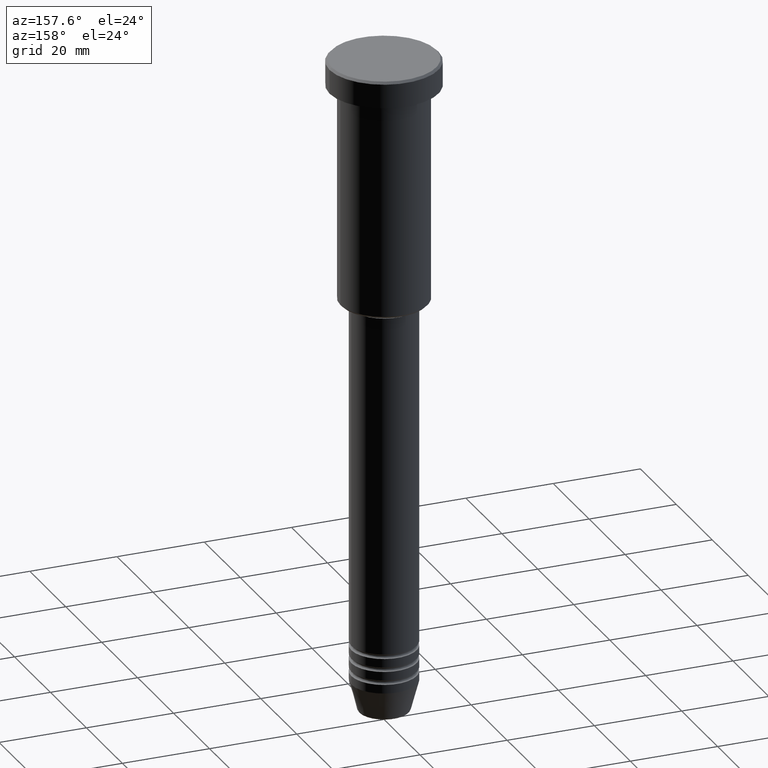
[diagram: clean part render]
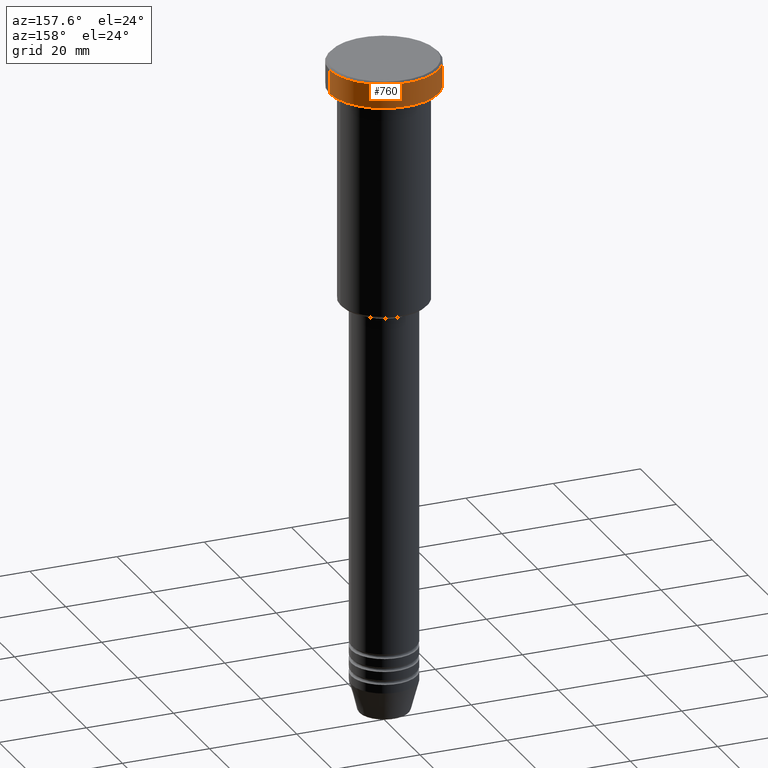
[diagram: same view with one face highlighted and labeled with its STEP entity id]
A machine part, auxiliary view. The second image highlights one B-rep face of the part: STEP entity #760.
In plain terms, the highlighted cylindrical surface (partial cylindrical patch) has radius 12.5 mm, axis along (-0, -0, 1).
Its self-contained STEP definition (entity closure, byte-faithful):
#13 = DIRECTION ( 'NONE',  ( -0.000000000000000000, -0.000000000000000000, 1.000000000000000000 ) ) ;
#22 = CARTESIAN_POINT ( 'NONE',  ( 0.000000000000000000, 0.000000000000000000, 0.000000000000000000 ) ) ;
#38 = DIRECTION ( 'NONE',  ( -0.000000000000000000, -0.000000000000000000, 1.000000000000000000 ) ) ;
#82 = CIRCLE ( 'NONE', #478, 12.50000000000000000 ) ;
#97 = DIRECTION ( 'NONE',  ( 1.000000000000000000, 0.000000000000000000, 0.000000000000000000 ) ) ;
#155 = VECTOR ( 'NONE', #522, 1000.000000000000000 ) ;
#268 = EDGE_CURVE ( 'NONE', #420, #943, #813, .T. ) ;
#281 = DIRECTION ( 'NONE',  ( 1.000000000000000000, 0.000000000000000000, 0.000000000000000000 ) ) ;
#318 = EDGE_CURVE ( 'NONE', #337, #977, #82, .T. ) ;
#337 = VERTEX_POINT ( 'NONE', #732 ) ;
#346 = ORIENTED_EDGE ( 'NONE', *, *, #851, .T. ) ;
#399 = FACE_OUTER_BOUND ( 'NONE', #518, .T. ) ;
#401 = ORIENTED_EDGE ( 'NONE', *, *, #915, .F. ) ;
#411 = AXIS2_PLACEMENT_3D ( 'NONE', #649, #558, #281 ) ;
#420 = VERTEX_POINT ( 'NONE', #887 ) ;
#478 = AXIS2_PLACEMENT_3D ( 'NONE', #824, #13, #97 ) ;
#509 = CARTESIAN_POINT ( 'NONE',  ( -12.50000000000000000, 1.530808498934191521E-15, -5.999999999999996447 ) ) ;
#518 = EDGE_LOOP ( 'NONE', ( #602, #346, #1043, #401 ) ) ;
#522 = DIRECTION ( 'NONE',  ( -0.000000000000000000, -0.000000000000000000, 1.000000000000000000 ) ) ;
#558 = DIRECTION ( 'NONE',  ( 0.000000000000000000, 0.000000000000000000, -1.000000000000000000 ) ) ;
#574 = AXIS2_PLACEMENT_3D ( 'NONE', #22, #38, #860 ) ;
#587 = CARTESIAN_POINT ( 'NONE',  ( -12.50000000000000000, 1.530808498934191521E-15, 0.000000000000000000 ) ) ;
#602 = ORIENTED_EDGE ( 'NONE', *, *, #318, .T. ) ;
#649 = CARTESIAN_POINT ( 'NONE',  ( 0.000000000000000000, 0.000000000000000000, -0.5000000000000056621 ) ) ;
#732 = CARTESIAN_POINT ( 'NONE',  ( 12.50000000000000000, 0.000000000000000000, -5.999999999999996447 ) ) ;
#760 = ADVANCED_FACE ( 'NONE', ( #399 ), #764, .T. ) ;
#763 = LINE ( 'NONE', #587, #832 ) ;
#764 = CYLINDRICAL_SURFACE ( 'NONE', #574, 12.50000000000000000 ) ;
#813 = CIRCLE ( 'NONE', #411, 12.50000000000000000 ) ;
#824 = CARTESIAN_POINT ( 'NONE',  ( 0.000000000000000000, 0.000000000000000000, -5.999999999999996447 ) ) ;
#832 = VECTOR ( 'NONE', #1131, 1000.000000000000000 ) ;
#851 = EDGE_CURVE ( 'NONE', #977, #420, #763, .T. ) ;
#860 = DIRECTION ( 'NONE',  ( 1.000000000000000000, 0.000000000000000000, 0.000000000000000000 ) ) ;
#881 = LINE ( 'NONE', #1069, #155 ) ;
#887 = CARTESIAN_POINT ( 'NONE',  ( -12.50000000000000000, 1.530808498934191521E-15, -0.5000000000000056621 ) ) ;
#915 = EDGE_CURVE ( 'NONE', #337, #943, #881, .T. ) ;
#943 = VERTEX_POINT ( 'NONE', #1181 ) ;
#977 = VERTEX_POINT ( 'NONE', #509 ) ;
#1043 = ORIENTED_EDGE ( 'NONE', *, *, #268, .T. ) ;
#1069 = CARTESIAN_POINT ( 'NONE',  ( 12.50000000000000000, 0.000000000000000000, 0.000000000000000000 ) ) ;
#1131 = DIRECTION ( 'NONE',  ( -0.000000000000000000, -0.000000000000000000, 1.000000000000000000 ) ) ;
#1181 = CARTESIAN_POINT ( 'NONE',  ( 12.50000000000000000, 0.000000000000000000, -0.5000000000000056621 ) ) ;